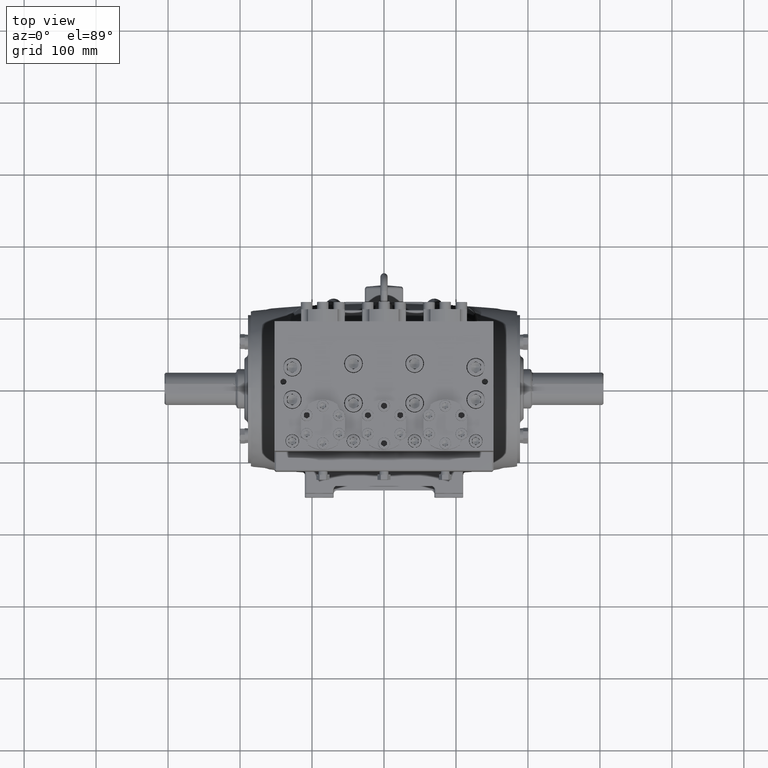
[diagram: clean part render]
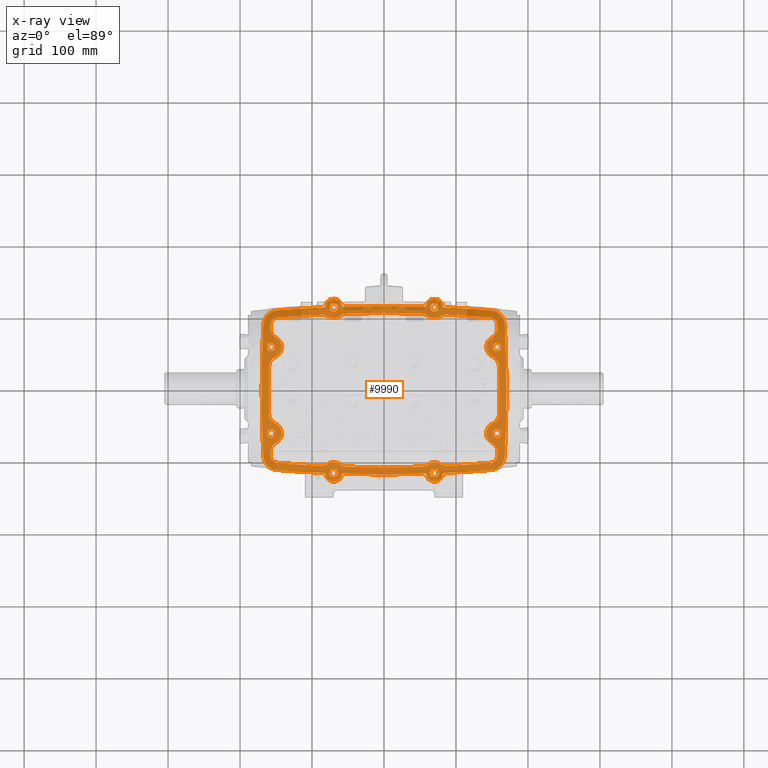
[diagram: x-ray — body ghosted, one internal face saturated and labeled with its STEP entity id]
A machine part, top view, then the same camera in x-ray: the body is ghosted and one INTERNAL B-rep face — a face not visible from any outside direction — is saturated and labeled: STEP entity #9990.
In plain terms, the highlighted planar face has unit normal (-0, 0, -1).
Its self-contained STEP definition (entity closure, byte-faithful):
#92 = CARTESIAN_POINT ( 'NONE',  ( 5.879475132747616684, -4.361980001285688857, -4.527559055118111075 ) ) ;
#541 = CARTESIAN_POINT ( 'NONE',  ( 0.000000000000000000, 66.25984251968503713, -4.527559055118111075 ) ) ;
#559 = AXIS2_PLACEMENT_3D ( 'NONE', #67489, #24088, #31088 ) ;
#775 = CARTESIAN_POINT ( 'NONE',  ( 64.17322834645669616, 0.000000000000000000, -4.527559055118111075 ) ) ;
#795 = EDGE_CURVE ( 'NONE', #50512, #13995, #78420, .T. ) ;
#833 = CARTESIAN_POINT ( 'NONE',  ( 64.17322834645669616, 0.000000000000000000, -4.527559055118111075 ) ) ;
#1280 = CARTESIAN_POINT ( 'NONE',  ( -2.755905511811023612, -4.527559055118110187, -4.527559055118111075 ) ) ;
#1353 = DIRECTION ( 'NONE',  ( 0.000000000000000000, 0.000000000000000000, 1.000000000000000000 ) ) ;
#1385 = CIRCLE ( 'NONE', #5335, 0.2263779527559057203 ) ;
#1456 = DIRECTION ( 'NONE',  ( -0.000000000000000000, -0.000000000000000000, -1.000000000000000000 ) ) ;
#1503 = CARTESIAN_POINT ( 'NONE',  ( 3.079201460133389912, -4.033362305533764847, -4.527559055118111075 ) ) ;
#1579 = ORIENTED_EDGE ( 'NONE', *, *, #54910, .F. ) ;
#1722 = FACE_BOUND ( 'NONE', #47123, .T. ) ;
#2141 = DIRECTION ( 'NONE',  ( -1.000000000000000000, 0.000000000000000000, 0.000000000000000000 ) ) ;
#2254 = DIRECTION ( 'NONE',  ( -0.000000000000000000, -0.000000000000000000, -1.000000000000000000 ) ) ;
#2532 = DIRECTION ( 'NONE',  ( -1.000000000000000000, 0.000000000000000000, 0.000000000000000000 ) ) ;
#2538 = AXIS2_PLACEMENT_3D ( 'NONE', #72323, #54112, #23141 ) ;
#2719 = CARTESIAN_POINT ( 'NONE',  ( -3.402497408455758876, -3.539165555949416841, -4.527559055118111075 ) ) ;
#2864 = AXIS2_PLACEMENT_3D ( 'NONE', #22477, #79487, #72887 ) ;
#2938 = FACE_OUTER_BOUND ( 'NONE', #37109, .T. ) ;
#3395 = CARTESIAN_POINT ( 'NONE',  ( 6.181102362204725864, 2.362204724409448620, -4.527559055118111075 ) ) ;
#3530 = AXIS2_PLACEMENT_3D ( 'NONE', #18777, #73148, #4553 ) ;
#3564 = CIRCLE ( 'NONE', #53689, 0.7874015748031503170 ) ;
#3934 = VERTEX_POINT ( 'NONE', #51728 ) ;
#4248 = CARTESIAN_POINT ( 'NONE',  ( -6.215528999314371639, 3.433332498902711194, -4.527559055118111075 ) ) ;
#4553 = DIRECTION ( 'NONE',  ( 1.000000000000000000, 0.000000000000000000, 0.000000000000000000 ) ) ;
#4805 = VERTEX_POINT ( 'NONE', #10926 ) ;
#5011 = CARTESIAN_POINT ( 'NONE',  ( -2.285324605308472812, -4.569440516842007582, -4.527559055118111075 ) ) ;
#5204 = CARTESIAN_POINT ( 'NONE',  ( 6.181102362204725864, 2.362204724409448620, -4.527559055118111075 ) ) ;
#5239 = EDGE_CURVE ( 'NONE', #60478, #41623, #57615, .T. ) ;
#5299 = DIRECTION ( 'NONE',  ( -0.000000000000000000, -0.000000000000000000, -1.000000000000000000 ) ) ;
#5307 = DIRECTION ( 'NONE',  ( -0.000000000000000000, -0.000000000000000000, -1.000000000000000000 ) ) ;
#5335 = AXIS2_PLACEMENT_3D ( 'NONE', #66618, #47606, #10433 ) ;
#5780 = CARTESIAN_POINT ( 'NONE',  ( 0.000000000000000000, 66.25984251968503713, -4.527559055118111075 ) ) ;
#5786 = ORIENTED_EDGE ( 'NONE', *, *, #33056, .F. ) ;
#5863 = VERTEX_POINT ( 'NONE', #23815 ) ;
#5965 = AXIS2_PLACEMENT_3D ( 'NONE', #34780, #78988, #59192 ) ;
#6004 = AXIS2_PLACEMENT_3D ( 'NONE', #47619, #72819, #66629 ) ;
#6053 = CIRCLE ( 'NONE', #25874, 0.5905511811023621549 ) ;
#6328 = CARTESIAN_POINT ( 'NONE',  ( -6.215528999314378744, -3.433332498902715191, -4.527559055118111075 ) ) ;
#6391 = CARTESIAN_POINT ( 'NONE',  ( -2.395166083321293993, -4.059993271260593950, -4.527559055118111075 ) ) ;
#6459 = CARTESIAN_POINT ( 'NONE',  ( 2.982283464566929165, 4.527559055118110187, -4.527559055118111075 ) ) ;
#6617 = DIRECTION ( 'NONE',  ( 0.000000000000000000, 0.000000000000000000, 1.000000000000000000 ) ) ;
#6688 = ORIENTED_EDGE ( 'NONE', *, *, #55095, .T. ) ;
#7080 = DIRECTION ( 'NONE',  ( 1.000000000000000000, 0.000000000000000000, 0.000000000000000000 ) ) ;
#7962 = AXIS2_PLACEMENT_3D ( 'NONE', #31479, #75674, #44268 ) ;
#8010 = DIRECTION ( 'NONE',  ( 0.000000000000000000, 0.000000000000000000, 1.000000000000000000 ) ) ;
#8129 = AXIS2_PLACEMENT_3D ( 'NONE', #5204, #36196, #24203 ) ;
#8155 = ORIENTED_EDGE ( 'NONE', *, *, #11276, .F. ) ;
#8303 = DIRECTION ( 'NONE',  ( 0.000000000000000000, 0.000000000000000000, 1.000000000000000000 ) ) ;
#8328 = VERTEX_POINT ( 'NONE', #40469 ) ;
#8382 = AXIS2_PLACEMENT_3D ( 'NONE', #47338, #15937, #66346 ) ;
#8494 = AXIS2_PLACEMENT_3D ( 'NONE', #47494, #72691, #35920 ) ;
#8633 = ORIENTED_EDGE ( 'NONE', *, *, #77851, .F. ) ;
#8757 = FACE_BOUND ( 'NONE', #11825, .T. ) ;
#8943 = DIRECTION ( 'NONE',  ( -1.000000000000000000, 0.000000000000000000, 0.000000000000000000 ) ) ;
#9137 = AXIS2_PLACEMENT_3D ( 'NONE', #54069, #65267, #66071 ) ;
#9146 = CIRCLE ( 'NONE', #48727, 0.2263779527559057203 ) ;
#9253 = DIRECTION ( 'NONE',  ( 1.000000000000000000, 0.000000000000000000, 0.000000000000000000 ) ) ;
#9389 = AXIS2_PLACEMENT_3D ( 'NONE', #12736, #63128, #29700 ) ;
#9586 = DIRECTION ( 'NONE',  ( -0.000000000000000000, -0.000000000000000000, -1.000000000000000000 ) ) ;
#9757 = CIRCLE ( 'NONE', #19011, 70.86614173228345237 ) ;
#9758 = EDGE_CURVE ( 'NONE', #29850, #73176, #43802, .T. ) ;
#9782 = CIRCLE ( 'NONE', #26946, 70.47244094488188182 ) ;
#9807 = CARTESIAN_POINT ( 'NONE',  ( -5.903390719813585541, 2.883383140291963187, -4.527559055118111075 ) ) ;
#9822 = VERTEX_POINT ( 'NONE', #79886 ) ;
#9922 = CARTESIAN_POINT ( 'NONE',  ( 2.395166083321290884, 4.059993271260593062, -4.527559055118111075 ) ) ;
#9990 = ADVANCED_FACE ( 'NONE', ( #2938, #8757, #45930, #71538, #39716, #65350, #77721, #1722, #28142, #59947 ), #53337, .F. ) ;
#10028 = CIRCLE ( 'NONE', #60143, 70.86614173228345237 ) ;
#10241 = DIRECTION ( 'NONE',  ( -0.000000000000000000, -0.000000000000000000, -1.000000000000000000 ) ) ;
#10289 = EDGE_CURVE ( 'NONE', #11414, #23087, #63637, .T. ) ;
#10433 = DIRECTION ( 'NONE',  ( -1.000000000000000000, 0.000000000000000000, 0.000000000000000000 ) ) ;
#10689 = CARTESIAN_POINT ( 'NONE',  ( 0.000000000000000000, 66.25984251968503713, -4.527559055118111075 ) ) ;
#10746 = EDGE_CURVE ( 'NONE', #30463, #23147, #47829, .T. ) ;
#10892 = CARTESIAN_POINT ( 'NONE',  ( 2.285324605308472812, -4.569440516842007582, -4.527559055118111075 ) ) ;
#10926 = CARTESIAN_POINT ( 'NONE',  ( 5.954724409448820310, 2.362204724409448620, -4.527559055118111075 ) ) ;
#11246 = CARTESIAN_POINT ( 'NONE',  ( 6.215528999314371639, 3.433332498902711194, -4.527559055118111075 ) ) ;
#11260 = CARTESIAN_POINT ( 'NONE',  ( 2.051618992759716598, -4.182728360702411052, -4.527559055118111075 ) ) ;
#11276 = EDGE_CURVE ( 'NONE', #32598, #20661, #54485, .T. ) ;
#11330 = EDGE_CURVE ( 'NONE', #65242, #46761, #75656, .T. ) ;
#11364 = VERTEX_POINT ( 'NONE', #65121 ) ;
#11389 = EDGE_CURVE ( 'NONE', #73176, #43291, #77017, .T. ) ;
#11414 = VERTEX_POINT ( 'NONE', #41123 ) ;
#11419 = CARTESIAN_POINT ( 'NONE',  ( 2.285324605308475476, 4.569440516842013800, -4.527559055118111075 ) ) ;
#11572 = EDGE_CURVE ( 'NONE', #52585, #33847, #51954, .T. ) ;
#11623 = EDGE_CURVE ( 'NONE', #80340, #11414, #80976, .T. ) ;
#11813 = CIRCLE ( 'NONE', #38144, 0.5905511811023615998 ) ;
#11825 = EDGE_LOOP ( 'NONE', ( #35013, #11831 ) ) ;
#11831 = ORIENTED_EDGE ( 'NONE', *, *, #79162, .F. ) ;
#11846 = VERTEX_POINT ( 'NONE', #26006 ) ;
#12086 = CIRCLE ( 'NONE', #8129, 0.5905511811023583801 ) ;
#12185 = CARTESIAN_POINT ( 'NONE',  ( -5.938974744346532830, -1.823572276285768901, -4.527559055118111075 ) ) ;
#12235 = VERTEX_POINT ( 'NONE', #21340 ) ;
#12329 = CARTESIAN_POINT ( 'NONE',  ( -5.954724409448817646, -2.362204724409448620, -4.527559055118111075 ) ) ;
#12490 = EDGE_CURVE ( 'NONE', #55291, #13012, #53366, .T. ) ;
#12583 = CARTESIAN_POINT ( 'NONE',  ( -5.625679077422444330, 3.404561556174479975, -4.527559055118111075 ) ) ;
#12603 = DIRECTION ( 'NONE',  ( 0.000000000000000000, 0.000000000000000000, 1.000000000000000000 ) ) ;
#12658 = ORIENTED_EDGE ( 'NONE', *, *, #29865, .T. ) ;
#12721 = DIRECTION ( 'NONE',  ( -1.000000000000000000, 0.000000000000000000, 0.000000000000000000 ) ) ;
#12728 = DIRECTION ( 'NONE',  ( 1.000000000000000000, 0.000000000000000000, 0.000000000000000000 ) ) ;
#12736 = CARTESIAN_POINT ( 'NONE',  ( 2.755905511811023612, -4.527559055118110187, -4.527559055118111075 ) ) ;
#12737 = DIRECTION ( 'NONE',  ( -1.000000000000000000, 0.000000000000000000, 0.000000000000000000 ) ) ;
#12740 = EDGE_CURVE ( 'NONE', #3934, #47481, #13802, .T. ) ;
#13012 = VERTEX_POINT ( 'NONE', #75882 ) ;
#13359 = AXIS2_PLACEMENT_3D ( 'NONE', #80117, #23912, #49109 ) ;
#13635 = DIRECTION ( 'NONE',  ( 1.000000000000000000, 0.000000000000000000, 0.000000000000000000 ) ) ;
#13671 = CIRCLE ( 'NONE', #50646, 0.2263779527559057203 ) ;
#13802 = CIRCLE ( 'NONE', #59980, 0.2263779527559057203 ) ;
#13854 = EDGE_CURVE ( 'NONE', #64654, #53334, #41618, .T. ) ;
#13995 = VERTEX_POINT ( 'NONE', #11260 ) ;
#14021 = AXIS2_PLACEMENT_3D ( 'NONE', #55256, #61864, #79634 ) ;
#14051 = ORIENTED_EDGE ( 'NONE', *, *, #12490, .T. ) ;
#14082 = ORIENTED_EDGE ( 'NONE', *, *, #76296, .F. ) ;
#14216 = CARTESIAN_POINT ( 'NONE',  ( -3.402497408455763317, 3.539165555949416841, -4.527559055118111075 ) ) ;
#14414 = DIRECTION ( 'NONE',  ( -1.000000000000000000, 0.000000000000000000, 0.000000000000000000 ) ) ;
#14448 = EDGE_CURVE ( 'NONE', #49761, #68693, #76660, .T. ) ;
#14882 = VERTEX_POINT ( 'NONE', #40261 ) ;
#15291 = CARTESIAN_POINT ( 'NONE',  ( 6.215528999314378744, -3.433332498902715191, -4.527559055118111075 ) ) ;
#15748 = CIRCLE ( 'NONE', #2538, 70.86614173228346658 ) ;
#15763 = CARTESIAN_POINT ( 'NONE',  ( 6.181102362204723200, -2.362204724409448620, -4.527559055118111075 ) ) ;
#15937 = DIRECTION ( 'NONE',  ( -0.000000000000000000, 0.000000000000000000, 1.000000000000000000 ) ) ;
#16126 = DIRECTION ( 'NONE',  ( 0.000000000000000000, 0.000000000000000000, 1.000000000000000000 ) ) ;
#16197 = CARTESIAN_POINT ( 'NONE',  ( -2.755905511811023612, 4.527559055118110187, -4.527559055118111075 ) ) ;
#16269 = CIRCLE ( 'NONE', #63788, 0.5905511811023583801 ) ;
#16540 = ORIENTED_EDGE ( 'NONE', *, *, #35911, .T. ) ;
#16618 = DIRECTION ( 'NONE',  ( 1.000000000000000000, 0.000000000000000000, 0.000000000000000000 ) ) ;
#17149 = AXIS2_PLACEMENT_3D ( 'NONE', #10689, #21542, #2141 ) ;
#17218 = ORIENTED_EDGE ( 'NONE', *, *, #12740, .T. ) ;
#17695 = CARTESIAN_POINT ( 'NONE',  ( 2.755905511811023612, 4.527559055118110187, -4.527559055118111075 ) ) ;
#17758 = CARTESIAN_POINT ( 'NONE',  ( -5.846811382010109526, -3.969636542835851767, -4.527559055118111075 ) ) ;
#18398 = DIRECTION ( 'NONE',  ( 1.000000000000000000, 0.000000000000000000, 0.000000000000000000 ) ) ;
#18543 = AXIS2_PLACEMENT_3D ( 'NONE', #32730, #26542, #24905 ) ;
#18777 = CARTESIAN_POINT ( 'NONE',  ( -5.625679077422441665, -3.404561556174479975, -4.527559055118111075 ) ) ;
#19011 = AXIS2_PLACEMENT_3D ( 'NONE', #52747, #22163, #65565 ) ;
#19425 = DIRECTION ( 'NONE',  ( -1.000000000000000000, 0.000000000000000000, 0.000000000000000000 ) ) ;
#19593 = EDGE_CURVE ( 'NONE', #49862, #13995, #24230, .T. ) ;
#19746 = EDGE_CURVE ( 'NONE', #23147, #30463, #13671, .T. ) ;
#19801 = VERTEX_POINT ( 'NONE', #11246 ) ;
#20035 = ORIENTED_EDGE ( 'NONE', *, *, #24149, .F. ) ;
#20107 = CARTESIAN_POINT ( 'NONE',  ( -6.407480314960631418, 2.362204724409448620, -4.527559055118111075 ) ) ;
#20143 = EDGE_CURVE ( 'NONE', #11846, #32041, #63858, .T. ) ;
#20327 = AXIS2_PLACEMENT_3D ( 'NONE', #42669, #80696, #37279 ) ;
#20351 = ORIENTED_EDGE ( 'NONE', *, *, #32979, .F. ) ;
#20363 = CARTESIAN_POINT ( 'NONE',  ( -2.755905511811023612, 4.527559055118110187, -4.527559055118111075 ) ) ;
#20390 = CARTESIAN_POINT ( 'NONE',  ( -3.431250907682156903, -4.129016328419565340, -4.527559055118111075 ) ) ;
#20436 = DIRECTION ( 'NONE',  ( 0.000000000000000000, 0.000000000000000000, 1.000000000000000000 ) ) ;
#20612 = CARTESIAN_POINT ( 'NONE',  ( 2.755905511811023612, 4.527559055118110187, -4.527559055118111075 ) ) ;
#20650 = VERTEX_POINT ( 'NONE', #47639 ) ;
#20661 = VERTEX_POINT ( 'NONE', #29442 ) ;
#21103 = VERTEX_POINT ( 'NONE', #25992 ) ;
#21138 = DIRECTION ( 'NONE',  ( -0.000000000000000000, 0.000000000000000000, -1.000000000000000000 ) ) ;
#21175 = DIRECTION ( 'NONE',  ( 0.000000000000000000, 0.000000000000000000, 1.000000000000000000 ) ) ;
#21327 = CARTESIAN_POINT ( 'NONE',  ( 5.814147631272645000, 3.577293084386014232, -4.527559055118111075 ) ) ;
#21340 = CARTESIAN_POINT ( 'NONE',  ( -6.287298468513228933, -1.295798474597251504, -4.527559055118111075 ) ) ;
#21469 = ORIENTED_EDGE ( 'NONE', *, *, #19593, .F. ) ;
#21542 = DIRECTION ( 'NONE',  ( 0.000000000000000000, 0.000000000000000000, 1.000000000000000000 ) ) ;
#21598 = AXIS2_PLACEMENT_3D ( 'NONE', #25105, #56095, #12728 ) ;
#21661 = ORIENTED_EDGE ( 'NONE', *, *, #11572, .F. ) ;
#21689 = AXIS2_PLACEMENT_3D ( 'NONE', #49574, #75174, #66968 ) ;
#22074 = CARTESIAN_POINT ( 'NONE',  ( 0.000000000000000000, -66.25984251968503713, -4.527559055118111075 ) ) ;
#22163 = DIRECTION ( 'NONE',  ( -0.000000000000000000, -0.000000000000000000, -1.000000000000000000 ) ) ;
#22477 = CARTESIAN_POINT ( 'NONE',  ( 0.000000000000000000, -66.25984251968503713, -4.527559055118111075 ) ) ;
#22942 = AXIS2_PLACEMENT_3D ( 'NONE', #64523, #65746, #27339 ) ;
#23087 = VERTEX_POINT ( 'NONE', #42575 ) ;
#23141 = DIRECTION ( 'NONE',  ( 1.000000000000000000, 0.000000000000000000, 0.000000000000000000 ) ) ;
#23147 = VERTEX_POINT ( 'NONE', #66574 ) ;
#23164 = EDGE_LOOP ( 'NONE', ( #36056, #14082, #31808, #68034, #6688, #71295, #56888, #59613, #80205, #80017, #59751, #76812, #33745, #80903, #70181, #28665, #73341, #48610, #71109, #29770, #42036, #21469, #1579, #78613, #8155, #60227, #35233, #28467, #23782, #8633, #20351, #38357, #73833, #26882, #77641, #21661, #67406, #69659, #41573, #79323 ) ) ;
#23165 = DIRECTION ( 'NONE',  ( 1.000000000000000000, 0.000000000000000000, 0.000000000000000000 ) ) ;
#23258 = AXIS2_PLACEMENT_3D ( 'NONE', #48629, #60186, #80823 ) ;
#23325 = EDGE_CURVE ( 'NONE', #74340, #24886, #65074, .T. ) ;
#23782 = ORIENTED_EDGE ( 'NONE', *, *, #67595, .F. ) ;
#23815 = CARTESIAN_POINT ( 'NONE',  ( -2.285324605308475476, 4.569440516842013800, -4.527559055118111075 ) ) ;
#23856 = EDGE_CURVE ( 'NONE', #81697, #20650, #65132, .T. ) ;
#23897 = EDGE_CURVE ( 'NONE', #31842, #80562, #75680, .T. ) ;
#23912 = DIRECTION ( 'NONE',  ( -0.000000000000000000, -0.000000000000000000, -1.000000000000000000 ) ) ;
#24012 = CARTESIAN_POINT ( 'NONE',  ( 3.228318182014460191, 4.532727752454121628, -4.527559055118111075 ) ) ;
#24088 = DIRECTION ( 'NONE',  ( 0.000000000000000000, 0.000000000000000000, 1.000000000000000000 ) ) ;
#24149 = EDGE_CURVE ( 'NONE', #46496, #14882, #9757, .T. ) ;
#24202 = AXIS2_PLACEMENT_3D ( 'NONE', #37499, #5299, #69316 ) ;
#24203 = DIRECTION ( 'NONE',  ( -1.000000000000000000, 0.000000000000000000, 0.000000000000000000 ) ) ;
#24229 = AXIS2_PLACEMENT_3D ( 'NONE', #12583, #62982, #37768 ) ;
#24230 = CIRCLE ( 'NONE', #45340, 70.47244094488188182 ) ;
#24271 = AXIS2_PLACEMENT_3D ( 'NONE', #66987, #36383, #67381 ) ;
#24273 = ORIENTED_EDGE ( 'NONE', *, *, #19746, .T. ) ;
#24303 = DIRECTION ( 'NONE',  ( -0.000000000000000000, -0.000000000000000000, -1.000000000000000000 ) ) ;
#24886 = VERTEX_POINT ( 'NONE', #50432 ) ;
#24905 = DIRECTION ( 'NONE',  ( 1.000000000000000000, 0.000000000000000000, 0.000000000000000000 ) ) ;
#25105 = CARTESIAN_POINT ( 'NONE',  ( -6.181102362204723200, -2.362204724409448620, -4.527559055118111075 ) ) ;
#25563 = EDGE_CURVE ( 'NONE', #4805, #55843, #81117, .T. ) ;
#25749 = DIRECTION ( 'NONE',  ( 1.000000000000000000, 0.000000000000000000, 0.000000000000000000 ) ) ;
#25874 = AXIS2_PLACEMENT_3D ( 'NONE', #63077, #74657, #32478 ) ;
#25973 = EDGE_CURVE ( 'NONE', #74751, #46496, #41581, .T. ) ;
#25992 = CARTESIAN_POINT ( 'NONE',  ( -5.954724409448820310, 2.362204724409448620, -4.527559055118111075 ) ) ;
#26006 = CARTESIAN_POINT ( 'NONE',  ( 6.407480314960629642, -2.362204724409448620, -4.527559055118111075 ) ) ;
#26007 = CIRCLE ( 'NONE', #31372, 0.7874015748031503170 ) ;
#26016 = CIRCLE ( 'NONE', #44463, 0.2263779527559057203 ) ;
#26531 = VERTEX_POINT ( 'NONE', #39158 ) ;
#26542 = DIRECTION ( 'NONE',  ( 0.000000000000000000, 0.000000000000000000, 1.000000000000000000 ) ) ;
#26670 = DIRECTION ( 'NONE',  ( 1.000000000000000000, 0.000000000000000000, 0.000000000000000000 ) ) ;
#26875 = CIRCLE ( 'NONE', #61207, 0.5905511811023615998 ) ;
#26882 = ORIENTED_EDGE ( 'NONE', *, *, #79104, .F. ) ;
#26946 = AXIS2_PLACEMENT_3D ( 'NONE', #59801, #10241, #28804 ) ;
#27021 = AXIS2_PLACEMENT_3D ( 'NONE', #40872, #71475, #65287 ) ;
#27023 = CARTESIAN_POINT ( 'NONE',  ( -5.814147631272645000, 3.577293084386014232, -4.527559055118111075 ) ) ;
#27339 = DIRECTION ( 'NONE',  ( 1.000000000000000000, 0.000000000000000000, 0.000000000000000000 ) ) ;
#27345 = EDGE_CURVE ( 'NONE', #34763, #49761, #54924, .T. ) ;
#27457 = DIRECTION ( 'NONE',  ( -0.000000000000000000, -0.000000000000000000, -1.000000000000000000 ) ) ;
#27464 = DIRECTION ( 'NONE',  ( -1.000000000000000000, 0.000000000000000000, 0.000000000000000000 ) ) ;
#27545 = CARTESIAN_POINT ( 'NONE',  ( 5.625679077422441665, -3.404561556174479975, -4.527559055118111075 ) ) ;
#27822 = CARTESIAN_POINT ( 'NONE',  ( -6.207335136765494532, 3.597390236545523035, -4.527559055118111075 ) ) ;
#27909 = VERTEX_POINT ( 'NONE', #51164 ) ;
#28123 = VERTEX_POINT ( 'NONE', #9807 ) ;
#28142 = FACE_BOUND ( 'NONE', #51366, .T. ) ;
#28243 = CARTESIAN_POINT ( 'NONE',  ( 2.034426654831557268, 3.592427487403074604, -4.527559055118111075 ) ) ;
#28463 = ORIENTED_EDGE ( 'NONE', *, *, #66653, .T. ) ;
#28467 = ORIENTED_EDGE ( 'NONE', *, *, #5239, .F. ) ;
#28584 = ORIENTED_EDGE ( 'NONE', *, *, #25973, .F. ) ;
#28601 = DIRECTION ( 'NONE',  ( -0.000000000000000000, -0.000000000000000000, -1.000000000000000000 ) ) ;
#28665 = ORIENTED_EDGE ( 'NONE', *, *, #71350, .T. ) ;
#28737 = DIRECTION ( 'NONE',  ( -1.000000000000000000, 0.000000000000000000, 0.000000000000000000 ) ) ;
#28804 = DIRECTION ( 'NONE',  ( -1.000000000000000000, 0.000000000000000000, 0.000000000000000000 ) ) ;
#28968 = CARTESIAN_POINT ( 'NONE',  ( -2.755905511811023612, 4.527559055118110187, -4.527559055118111075 ) ) ;
#29164 = CARTESIAN_POINT ( 'NONE',  ( -2.755905511811023612, -4.527559055118110187, -4.527559055118111075 ) ) ;
#29442 = CARTESIAN_POINT ( 'NONE',  ( -3.079201460133389912, -4.033362305533764847, -4.527559055118111075 ) ) ;
#29700 = DIRECTION ( 'NONE',  ( -1.000000000000000000, 0.000000000000000000, 0.000000000000000000 ) ) ;
#29770 = ORIENTED_EDGE ( 'NONE', *, *, #53009, .T. ) ;
#29850 = VERTEX_POINT ( 'NONE', #72004 ) ;
#29865 = EDGE_CURVE ( 'NONE', #55843, #4805, #26016, .T. ) ;
#30112 = CARTESIAN_POINT ( 'NONE',  ( 5.625679077422444330, 3.404561556174479975, -4.527559055118111075 ) ) ;
#30306 = CIRCLE ( 'NONE', #43504, 70.47244094488186761 ) ;
#30348 = ORIENTED_EDGE ( 'NONE', *, *, #10746, .T. ) ;
#30461 = CIRCLE ( 'NONE', #43651, 70.47244094488188182 ) ;
#30463 = VERTEX_POINT ( 'NONE', #6459 ) ;
#30618 = EDGE_CURVE ( 'NONE', #45575, #21103, #78847, .T. ) ;
#30809 = EDGE_CURVE ( 'NONE', #20661, #49280, #80169, .T. ) ;
#31061 = DIRECTION ( 'NONE',  ( -0.000000000000000000, -0.000000000000000000, -1.000000000000000000 ) ) ;
#31088 = DIRECTION ( 'NONE',  ( 1.000000000000000000, 0.000000000000000000, 0.000000000000000000 ) ) ;
#31372 = AXIS2_PLACEMENT_3D ( 'NONE', #21327, #71727, #8943 ) ;
#31479 = CARTESIAN_POINT ( 'NONE',  ( 0.000000000000000000, 66.25984251968503713, -4.527559055118111075 ) ) ;
#31526 = CARTESIAN_POINT ( 'NONE',  ( 6.287298468513228933, -1.295798474597251504, -4.527559055118111075 ) ) ;
#31782 = VERTEX_POINT ( 'NONE', #73351 ) ;
#31795 = DIRECTION ( 'NONE',  ( 0.000000000000000000, 0.000000000000000000, 1.000000000000000000 ) ) ;
#31808 = ORIENTED_EDGE ( 'NONE', *, *, #9758, .T. ) ;
#31842 = VERTEX_POINT ( 'NONE', #37773 ) ;
#31900 = EDGE_CURVE ( 'NONE', #31782, #70714, #69711, .T. ) ;
#32041 = VERTEX_POINT ( 'NONE', #48478 ) ;
#32210 = DIRECTION ( 'NONE',  ( 0.000000000000000000, 0.000000000000000000, 1.000000000000000000 ) ) ;
#32478 = DIRECTION ( 'NONE',  ( -1.000000000000000000, 0.000000000000000000, 0.000000000000000000 ) ) ;
#32598 = VERTEX_POINT ( 'NONE', #20390 ) ;
#32674 = DIRECTION ( 'NONE',  ( -0.000000000000000000, -0.000000000000000000, -1.000000000000000000 ) ) ;
#32730 = CARTESIAN_POINT ( 'NONE',  ( -6.181102362204723200, -2.362204724409448620, -4.527559055118111075 ) ) ;
#32912 = ORIENTED_EDGE ( 'NONE', *, *, #63186, .T. ) ;
#32979 = EDGE_CURVE ( 'NONE', #12235, #77630, #11813, .T. ) ;
#33054 = EDGE_CURVE ( 'NONE', #60122, #5863, #15748, .T. ) ;
#33056 = EDGE_CURVE ( 'NONE', #74231, #27909, #9146, .T. ) ;
#33279 = DIRECTION ( 'NONE',  ( 1.000000000000000000, 0.000000000000000000, 0.000000000000000000 ) ) ;
#33312 = AXIS2_PLACEMENT_3D ( 'NONE', #17695, #68105, #12721 ) ;
#33403 = DIRECTION ( 'NONE',  ( -0.000000000000000000, -0.000000000000000000, -1.000000000000000000 ) ) ;
#33426 = AXIS2_PLACEMENT_3D ( 'NONE', #33933, #76897, #2532 ) ;
#33745 = ORIENTED_EDGE ( 'NONE', *, *, #13854, .T. ) ;
#33847 = VERTEX_POINT ( 'NONE', #4248 ) ;
#33917 = EDGE_CURVE ( 'NONE', #57722, #32598, #34308, .T. ) ;
#33933 = CARTESIAN_POINT ( 'NONE',  ( -5.814147631272645000, -3.577293084386014232, -4.527559055118111075 ) ) ;
#33943 = DIRECTION ( 'NONE',  ( -1.000000000000000000, 0.000000000000000000, 0.000000000000000000 ) ) ;
#34030 = DIRECTION ( 'NONE',  ( 0.000000000000000000, 0.000000000000000000, 1.000000000000000000 ) ) ;
#34085 = VERTEX_POINT ( 'NONE', #54964 ) ;
#34095 = AXIS2_PLACEMENT_3D ( 'NONE', #14216, #8010, #44375 ) ;
#34307 = EDGE_CURVE ( 'NONE', #60122, #76782, #75307, .T. ) ;
#34308 = CIRCLE ( 'NONE', #7962, 70.47244094488188182 ) ;
#34328 = VERTEX_POINT ( 'NONE', #66449 ) ;
#34431 = DIRECTION ( 'NONE',  ( 0.000000000000000000, 0.000000000000000000, 1.000000000000000000 ) ) ;
#34763 = VERTEX_POINT ( 'NONE', #92 ) ;
#34780 = CARTESIAN_POINT ( 'NONE',  ( -64.17322834645669616, 0.000000000000000000, -4.527559055118111075 ) ) ;
#35013 = ORIENTED_EDGE ( 'NONE', *, *, #75016, .F. ) ;
#35233 = ORIENTED_EDGE ( 'NONE', *, *, #79388, .F. ) ;
#35284 = CARTESIAN_POINT ( 'NONE',  ( 2.395166083321293993, -4.059993271260593950, -4.527559055118111075 ) ) ;
#35537 = CARTESIAN_POINT ( 'NONE',  ( -2.755905511811023612, 4.527559055118110187, -4.527559055118111075 ) ) ;
#35761 = DIRECTION ( 'NONE',  ( -1.000000000000000000, 0.000000000000000000, 0.000000000000000000 ) ) ;
#35831 = AXIS2_PLACEMENT_3D ( 'NONE', #49183, #61586, #23165 ) ;
#35911 = EDGE_CURVE ( 'NONE', #5863, #55291, #37133, .T. ) ;
#35920 = DIRECTION ( 'NONE',  ( -1.000000000000000000, 0.000000000000000000, 0.000000000000000000 ) ) ;
#36051 = DIRECTION ( 'NONE',  ( 0.000000000000000000, 0.000000000000000000, 1.000000000000000000 ) ) ;
#36056 = ORIENTED_EDGE ( 'NONE', *, *, #11330, .F. ) ;
#36082 = CARTESIAN_POINT ( 'NONE',  ( -6.181102362204725864, 2.362204724409448620, -4.527559055118111075 ) ) ;
#36196 = DIRECTION ( 'NONE',  ( -0.000000000000000000, 0.000000000000000000, 1.000000000000000000 ) ) ;
#36295 = CARTESIAN_POINT ( 'NONE',  ( -64.17322834645669616, 0.000000000000000000, -4.527559055118111075 ) ) ;
#36383 = DIRECTION ( 'NONE',  ( 0.000000000000000000, 0.000000000000000000, 1.000000000000000000 ) ) ;
#36605 = CIRCLE ( 'NONE', #74873, 0.5905511811023615998 ) ;
#36631 = AXIS2_PLACEMENT_3D ( 'NONE', #58917, #65516, #33279 ) ;
#36724 = CIRCLE ( 'NONE', #63083, 0.3937007874015751585 ) ;
#36768 = ORIENTED_EDGE ( 'NONE', *, *, #54670, .T. ) ;
#36806 = VERTEX_POINT ( 'NONE', #39868 ) ;
#36921 = ORIENTED_EDGE ( 'NONE', *, *, #27345, .F. ) ;
#37109 = EDGE_LOOP ( 'NONE', ( #53303, #50466, #16540, #14051, #51933, #67449, #36768, #63122, #63324, #32912, #59932, #49201, #36921, #60289, #20035, #28584, #60353, #64184 ) ) ;
#37133 = CIRCLE ( 'NONE', #47525, 0.4724409448818896462 ) ;
#37175 = VERTEX_POINT ( 'NONE', #15291 ) ;
#37237 = AXIS2_PLACEMENT_3D ( 'NONE', #48815, #9586, #47993 ) ;
#37279 = DIRECTION ( 'NONE',  ( 1.000000000000000000, 0.000000000000000000, 0.000000000000000000 ) ) ;
#37469 = CIRCLE ( 'NONE', #58594, 0.2263779527559057203 ) ;
#37494 = EDGE_CURVE ( 'NONE', #20650, #45826, #9782, .T. ) ;
#37499 = CARTESIAN_POINT ( 'NONE',  ( 5.814147631272622796, -3.577293084386014232, -4.527559055118111075 ) ) ;
#37768 = DIRECTION ( 'NONE',  ( -1.000000000000000000, 0.000000000000000000, 0.000000000000000000 ) ) ;
#37773 = CARTESIAN_POINT ( 'NONE',  ( -6.407480314960629642, -2.362204724409448620, -4.527559055118111075 ) ) ;
#37774 = DIRECTION ( 'NONE',  ( -0.000000000000000000, -0.000000000000000000, -1.000000000000000000 ) ) ;
#38144 = AXIS2_PLACEMENT_3D ( 'NONE', #64907, #8303, #58710 ) ;
#38357 = ORIENTED_EDGE ( 'NONE', *, *, #62831, .F. ) ;
#39158 = CARTESIAN_POINT ( 'NONE',  ( 6.207335136765494532, 3.597390236545523035, -4.527559055118111075 ) ) ;
#39251 = EDGE_LOOP ( 'NONE', ( #42121, #69453 ) ) ;
#39492 = AXIS2_PLACEMENT_3D ( 'NONE', #22074, #53463, #43796 ) ;
#39644 = CIRCLE ( 'NONE', #44904, 0.3937007874015751585 ) ;
#39661 = AXIS2_PLACEMENT_3D ( 'NONE', #20612, #33403, #14414 ) ;
#39716 = FACE_BOUND ( 'NONE', #48262, .T. ) ;
#39868 = CARTESIAN_POINT ( 'NONE',  ( 5.903390719813585541, 2.883383140291963187, -4.527559055118111075 ) ) ;
#39981 = AXIS2_PLACEMENT_3D ( 'NONE', #54053, #54888, #42079 ) ;
#40125 = CARTESIAN_POINT ( 'NONE',  ( 6.692913385826751771, 0.000000000000000000, -4.527559055118111075 ) ) ;
#40261 = CARTESIAN_POINT ( 'NONE',  ( 6.600522642258369821, -3.617487388704947016, -4.527559055118111075 ) ) ;
#40376 = CIRCLE ( 'NONE', #14021, 0.5905511811023621549 ) ;
#40469 = CARTESIAN_POINT ( 'NONE',  ( -6.600522642258368933, 3.617487388704958562, -4.527559055118111075 ) ) ;
#40872 = CARTESIAN_POINT ( 'NONE',  ( 2.034426654831562598, -3.592427487403074604, -4.527559055118111075 ) ) ;
#40943 = DIRECTION ( 'NONE',  ( -0.000000000000000000, 0.000000000000000000, 1.000000000000000000 ) ) ;
#41123 = CARTESIAN_POINT ( 'NONE',  ( -5.879475132747616684, -4.361980001285688857, -4.527559055118111075 ) ) ;
#41157 = ORIENTED_EDGE ( 'NONE', *, *, #79203, .F. ) ;
#41306 = DIRECTION ( 'NONE',  ( 1.000000000000000000, 0.000000000000000000, 0.000000000000000000 ) ) ;
#41377 = CIRCLE ( 'NONE', #24229, 0.5905511811023615998 ) ;
#41531 = CARTESIAN_POINT ( 'NONE',  ( -2.034426654831557268, 3.592427487403074604, -4.527559055118111075 ) ) ;
#41573 = ORIENTED_EDGE ( 'NONE', *, *, #31900, .F. ) ;
#41581 = CIRCLE ( 'NONE', #5965, 70.86614173228345237 ) ;
#41618 = CIRCLE ( 'NONE', #6004, 0.5905511811023615998 ) ;
#41623 = VERTEX_POINT ( 'NONE', #78149 ) ;
#41650 = CARTESIAN_POINT ( 'NONE',  ( 3.228318182014415783, -4.532727752454131398, -4.527559055118111075 ) ) ;
#42036 = ORIENTED_EDGE ( 'NONE', *, *, #795, .T. ) ;
#42079 = DIRECTION ( 'NONE',  ( -1.000000000000000000, 0.000000000000000000, 0.000000000000000000 ) ) ;
#42121 = ORIENTED_EDGE ( 'NONE', *, *, #47375, .F. ) ;
#42154 = CARTESIAN_POINT ( 'NONE',  ( 5.903390719813582876, -2.883383140291962743, -4.527559055118111075 ) ) ;
#42427 = EDGE_CURVE ( 'NONE', #13012, #8328, #3564, .T. ) ;
#42575 = CARTESIAN_POINT ( 'NONE',  ( -3.228318182014415783, -4.532727752454131398, -4.527559055118111075 ) ) ;
#42669 = CARTESIAN_POINT ( 'NONE',  ( -6.181102362204725864, 2.362204724409448620, -4.527559055118111075 ) ) ;
#43159 = EDGE_CURVE ( 'NONE', #11364, #47902, #36605, .T. ) ;
#43206 = AXIS2_PLACEMENT_3D ( 'NONE', #80664, #31061, #49261 ) ;
#43291 = VERTEX_POINT ( 'NONE', #58850 ) ;
#43504 = AXIS2_PLACEMENT_3D ( 'NONE', #69324, #49926, #12737 ) ;
#43588 = CIRCLE ( 'NONE', #18543, 0.2263779527559057203 ) ;
#43651 = AXIS2_PLACEMENT_3D ( 'NONE', #59640, #34431, #53435 ) ;
#43665 = CIRCLE ( 'NONE', #80617, 0.2263779527559057203 ) ;
#43796 = DIRECTION ( 'NONE',  ( -1.000000000000000000, 0.000000000000000000, 0.000000000000000000 ) ) ;
#43802 = CIRCLE ( 'NONE', #64943, 0.5905511811023624880 ) ;
#43910 = DIRECTION ( 'NONE',  ( -0.000000000000000000, -0.000000000000000000, -1.000000000000000000 ) ) ;
#44046 = EDGE_LOOP ( 'NONE', ( #24273, #30348 ) ) ;
#44185 = EDGE_CURVE ( 'NONE', #46761, #31782, #64440, .T. ) ;
#44268 = DIRECTION ( 'NONE',  ( 1.000000000000000000, 0.000000000000000000, 0.000000000000000000 ) ) ;
#44375 = DIRECTION ( 'NONE',  ( 1.000000000000000000, 0.000000000000000000, 0.000000000000000000 ) ) ;
#44463 = AXIS2_PLACEMENT_3D ( 'NONE', #3395, #28601, #53801 ) ;
#44524 = AXIS2_PLACEMENT_3D ( 'NONE', #1280, #32674, #7080 ) ;
#44675 = CARTESIAN_POINT ( 'NONE',  ( -2.982283464566929165, 4.527559055118110187, -4.527559055118111075 ) ) ;
#44904 = AXIS2_PLACEMENT_3D ( 'NONE', #58059, #1456, #26670 ) ;
#45171 = AXIS2_PLACEMENT_3D ( 'NONE', #78531, #21138, #33943 ) ;
#45340 = AXIS2_PLACEMENT_3D ( 'NONE', #541, #1353, #25749 ) ;
#45575 = VERTEX_POINT ( 'NONE', #20107 ) ;
#45826 = VERTEX_POINT ( 'NONE', #54347 ) ;
#45930 = FACE_BOUND ( 'NONE', #39251, .T. ) ;
#45948 = CARTESIAN_POINT ( 'NONE',  ( 2.982283464566929165, -4.527559055118110187, -4.527559055118111075 ) ) ;
#46111 = DIRECTION ( 'NONE',  ( 1.000000000000000000, 0.000000000000000000, 0.000000000000000000 ) ) ;
#46320 = CARTESIAN_POINT ( 'NONE',  ( 6.407480314960631418, 2.362204724409448620, -4.527559055118111075 ) ) ;
#46496 = VERTEX_POINT ( 'NONE', #40125 ) ;
#46511 = EDGE_CURVE ( 'NONE', #70788, #68693, #68614, .T. ) ;
#46526 = DIRECTION ( 'NONE',  ( 0.000000000000000000, 0.000000000000000000, 1.000000000000000000 ) ) ;
#46761 = VERTEX_POINT ( 'NONE', #73791 ) ;
#47123 = EDGE_LOOP ( 'NONE', ( #28463, #73079 ) ) ;
#47129 = CARTESIAN_POINT ( 'NONE',  ( 5.938974744346534607, 1.823572276285768456, -4.527559055118111075 ) ) ;
#47176 = DIRECTION ( 'NONE',  ( 1.000000000000000000, 0.000000000000000000, 0.000000000000000000 ) ) ;
#47338 = CARTESIAN_POINT ( 'NONE',  ( 2.755905511811023612, 4.527559055118110187, -4.527559055118111075 ) ) ;
#47375 = EDGE_CURVE ( 'NONE', #80562, #31842, #43588, .T. ) ;
#47481 = VERTEX_POINT ( 'NONE', #45948 ) ;
#47494 = CARTESIAN_POINT ( 'NONE',  ( 6.181102362204723200, -2.362204724409448620, -4.527559055118111075 ) ) ;
#47515 = CARTESIAN_POINT ( 'NONE',  ( 6.181102362204723200, -2.362204724409448620, -4.527559055118111075 ) ) ;
#47525 = AXIS2_PLACEMENT_3D ( 'NONE', #20363, #21175, #63745 ) ;
#47606 = DIRECTION ( 'NONE',  ( -0.000000000000000000, -0.000000000000000000, -1.000000000000000000 ) ) ;
#47619 = CARTESIAN_POINT ( 'NONE',  ( 5.696847126488339796, -1.284939828162086073, -4.527559055118111075 ) ) ;
#47639 = CARTESIAN_POINT ( 'NONE',  ( 5.846811382010109526, -3.969636542835851767, -4.527559055118111075 ) ) ;
#47829 = CIRCLE ( 'NONE', #33312, 0.2263779527559057203 ) ;
#47902 = VERTEX_POINT ( 'NONE', #80058 ) ;
#47993 = DIRECTION ( 'NONE',  ( 1.000000000000000000, 0.000000000000000000, 0.000000000000000000 ) ) ;
#48022 = CARTESIAN_POINT ( 'NONE',  ( -5.846811382010106861, 3.969636542835870419, -4.527559055118111075 ) ) ;
#48262 = EDGE_LOOP ( 'NONE', ( #50717, #5786 ) ) ;
#48402 = DIRECTION ( 'NONE',  ( -0.000000000000000000, -0.000000000000000000, -1.000000000000000000 ) ) ;
#48478 = CARTESIAN_POINT ( 'NONE',  ( 5.954724409448817646, -2.362204724409448620, -4.527559055118111075 ) ) ;
#48610 = ORIENTED_EDGE ( 'NONE', *, *, #37494, .T. ) ;
#48629 = CARTESIAN_POINT ( 'NONE',  ( 0.000000000000000000, 66.25984251968503713, -4.527559055118111075 ) ) ;
#48664 = CARTESIAN_POINT ( 'NONE',  ( 6.600522642258368933, 3.617487388704958562, -4.527559055118111075 ) ) ;
#48727 = AXIS2_PLACEMENT_3D ( 'NONE', #35537, #16126, #41306 ) ;
#48815 = CARTESIAN_POINT ( 'NONE',  ( 3.402497408455758876, -3.539165555949416841, -4.527559055118111075 ) ) ;
#48891 = DIRECTION ( 'NONE',  ( 1.000000000000000000, 0.000000000000000000, 0.000000000000000000 ) ) ;
#48987 = CIRCLE ( 'NONE', #13359, 70.47244094488186761 ) ;
#49027 = CIRCLE ( 'NONE', #62239, 0.5905511811023583801 ) ;
#49109 = DIRECTION ( 'NONE',  ( -1.000000000000000000, 0.000000000000000000, 0.000000000000000000 ) ) ;
#49183 = CARTESIAN_POINT ( 'NONE',  ( -2.755905511811023612, -4.527559055118110187, -4.527559055118111075 ) ) ;
#49201 = ORIENTED_EDGE ( 'NONE', *, *, #14448, .F. ) ;
#49261 = DIRECTION ( 'NONE',  ( -1.000000000000000000, 0.000000000000000000, 0.000000000000000000 ) ) ;
#49280 = VERTEX_POINT ( 'NONE', #6391 ) ;
#49574 = CARTESIAN_POINT ( 'NONE',  ( 2.755905511811023612, -4.527559055118110187, -4.527559055118111075 ) ) ;
#49639 = CARTESIAN_POINT ( 'NONE',  ( 2.755905511811023612, 4.527559055118110187, -4.527559055118111075 ) ) ;
#49761 = VERTEX_POINT ( 'NONE', #41650 ) ;
#49862 = VERTEX_POINT ( 'NONE', #65239 ) ;
#49926 = DIRECTION ( 'NONE',  ( -0.000000000000000000, -0.000000000000000000, -1.000000000000000000 ) ) ;
#50182 = CARTESIAN_POINT ( 'NONE',  ( -6.181102362204723200, -2.362204724409448620, -4.527559055118111075 ) ) ;
#50432 = CARTESIAN_POINT ( 'NONE',  ( 6.287298468513228933, 1.295798474597258831, -4.527559055118111075 ) ) ;
#50466 = ORIENTED_EDGE ( 'NONE', *, *, #33054, .T. ) ;
#50512 = VERTEX_POINT ( 'NONE', #35284 ) ;
#50529 = CIRCLE ( 'NONE', #79535, 0.2263779527559057203 ) ;
#50646 = AXIS2_PLACEMENT_3D ( 'NONE', #49639, #81437, #56226 ) ;
#50717 = ORIENTED_EDGE ( 'NONE', *, *, #77478, .F. ) ;
#50799 = EDGE_CURVE ( 'NONE', #53334, #53083, #49027, .T. ) ;
#51009 = AXIS2_PLACEMENT_3D ( 'NONE', #63230, #6617, #13635 ) ;
#51164 = CARTESIAN_POINT ( 'NONE',  ( -2.529527559055117614, 4.527559055118110187, -4.527559055118111075 ) ) ;
#51225 = AXIS2_PLACEMENT_3D ( 'NONE', #28968, #48402, #47176 ) ;
#51316 = ORIENTED_EDGE ( 'NONE', *, *, #25563, .T. ) ;
#51345 = VERTEX_POINT ( 'NONE', #76270 ) ;
#51366 = EDGE_LOOP ( 'NONE', ( #51316, #12658 ) ) ;
#51629 = CIRCLE ( 'NONE', #35831, 0.4724409448818896462 ) ;
#51728 = CARTESIAN_POINT ( 'NONE',  ( 2.529527559055117614, -4.527559055118110187, -4.527559055118111075 ) ) ;
#51828 = CARTESIAN_POINT ( 'NONE',  ( 0.000000000000000000, -66.25984251968503713, -4.527559055118111075 ) ) ;
#51933 = ORIENTED_EDGE ( 'NONE', *, *, #42427, .T. ) ;
#51954 = CIRCLE ( 'NONE', #22942, 70.47244094488186761 ) ;
#52386 = EDGE_CURVE ( 'NONE', #33847, #28123, #41377, .T. ) ;
#52585 = VERTEX_POINT ( 'NONE', #27822 ) ;
#52724 = DIRECTION ( 'NONE',  ( -0.000000000000000000, -0.000000000000000000, -1.000000000000000000 ) ) ;
#52747 = CARTESIAN_POINT ( 'NONE',  ( -64.17322834645669616, 0.000000000000000000, -4.527559055118111075 ) ) ;
#52992 = CIRCLE ( 'NONE', #2864, 70.47244094488188182 ) ;
#53009 = EDGE_CURVE ( 'NONE', #68116, #50512, #59973, .T. ) ;
#53083 = VERTEX_POINT ( 'NONE', #42154 ) ;
#53183 = AXIS2_PLACEMENT_3D ( 'NONE', #2719, #59726, #28737 ) ;
#53303 = ORIENTED_EDGE ( 'NONE', *, *, #34307, .F. ) ;
#53334 = VERTEX_POINT ( 'NONE', #58618 ) ;
#53337 = PLANE ( 'NONE',  #45171 ) ;
#53366 = CIRCLE ( 'NONE', #74489, 70.86614173228346658 ) ;
#53435 = DIRECTION ( 'NONE',  ( 1.000000000000000000, 0.000000000000000000, 0.000000000000000000 ) ) ;
#53463 = DIRECTION ( 'NONE',  ( -0.000000000000000000, -0.000000000000000000, -1.000000000000000000 ) ) ;
#53689 = AXIS2_PLACEMENT_3D ( 'NONE', #27023, #34030, #58836 ) ;
#53801 = DIRECTION ( 'NONE',  ( -1.000000000000000000, 0.000000000000000000, 0.000000000000000000 ) ) ;
#54053 = CARTESIAN_POINT ( 'NONE',  ( 5.696847126488341573, 1.284939828162086073, -4.527559055118111075 ) ) ;
#54069 = CARTESIAN_POINT ( 'NONE',  ( 5.814147631272645000, -3.577293084386014232, -4.527559055118111075 ) ) ;
#54112 = DIRECTION ( 'NONE',  ( 0.000000000000000000, 0.000000000000000000, 1.000000000000000000 ) ) ;
#54182 = VERTEX_POINT ( 'NONE', #75453 ) ;
#54347 = CARTESIAN_POINT ( 'NONE',  ( 3.431250907682156903, -4.129016328419565340, -4.527559055118111075 ) ) ;
#54485 = CIRCLE ( 'NONE', #53183, 0.5905511811023621549 ) ;
#54670 = EDGE_CURVE ( 'NONE', #78900, #80340, #10028, .T. ) ;
#54782 = DIRECTION ( 'NONE',  ( 1.000000000000000000, 0.000000000000000000, 0.000000000000000000 ) ) ;
#54888 = DIRECTION ( 'NONE',  ( -0.000000000000000000, -0.000000000000000000, -1.000000000000000000 ) ) ;
#54910 = EDGE_CURVE ( 'NONE', #49280, #49862, #40376, .T. ) ;
#54924 = CIRCLE ( 'NONE', #23258, 70.86614173228346658 ) ;
#54964 = CARTESIAN_POINT ( 'NONE',  ( 5.879475132747624677, 4.361980001285691522, -4.527559055118111075 ) ) ;
#55095 = EDGE_CURVE ( 'NONE', #43291, #54182, #6053, .T. ) ;
#55256 = CARTESIAN_POINT ( 'NONE',  ( -2.034426654831562598, -3.592427487403074604, -4.527559055118111075 ) ) ;
#55291 = VERTEX_POINT ( 'NONE', #64307 ) ;
#55703 = DIRECTION ( 'NONE',  ( 1.000000000000000000, 0.000000000000000000, 0.000000000000000000 ) ) ;
#55843 = VERTEX_POINT ( 'NONE', #46320 ) ;
#55912 = DIRECTION ( 'NONE',  ( -1.000000000000000000, 0.000000000000000000, 0.000000000000000000 ) ) ;
#56095 = DIRECTION ( 'NONE',  ( 0.000000000000000000, 0.000000000000000000, 1.000000000000000000 ) ) ;
#56199 = CIRCLE ( 'NONE', #70775, 0.2263779527559057203 ) ;
#56226 = DIRECTION ( 'NONE',  ( -1.000000000000000000, 0.000000000000000000, 0.000000000000000000 ) ) ;
#56791 = CARTESIAN_POINT ( 'NONE',  ( -6.692913385826751771, 0.000000000000000000, -4.527559055118111075 ) ) ;
#56865 = CIRCLE ( 'NONE', #70089, 70.86614173228345237 ) ;
#56888 = ORIENTED_EDGE ( 'NONE', *, *, #62262, .T. ) ;
#57300 = CIRCLE ( 'NONE', #20327, 0.5905511811023583801 ) ;
#57429 = CARTESIAN_POINT ( 'NONE',  ( -6.600522642258369821, -3.617487388704947016, -4.527559055118111075 ) ) ;
#57615 = CIRCLE ( 'NONE', #51009, 70.47244094488186761 ) ;
#57722 = VERTEX_POINT ( 'NONE', #17758 ) ;
#58059 = CARTESIAN_POINT ( 'NONE',  ( 5.814147631272622796, 3.577293084386040434, -4.527559055118111075 ) ) ;
#58365 = EDGE_CURVE ( 'NONE', #70714, #81217, #64337, .T. ) ;
#58413 = EDGE_CURVE ( 'NONE', #54182, #9822, #68294, .T. ) ;
#58594 = AXIS2_PLACEMENT_3D ( 'NONE', #36082, #61699, #48891 ) ;
#58618 = CARTESIAN_POINT ( 'NONE',  ( 5.938974744346532830, -1.823572276285768901, -4.527559055118111075 ) ) ;
#58710 = DIRECTION ( 'NONE',  ( -1.000000000000000000, 0.000000000000000000, 0.000000000000000000 ) ) ;
#58836 = DIRECTION ( 'NONE',  ( 1.000000000000000000, 0.000000000000000000, 0.000000000000000000 ) ) ;
#58850 = CARTESIAN_POINT ( 'NONE',  ( 3.079201460133393464, 4.033362305533763958, -4.527559055118111075 ) ) ;
#58861 = CARTESIAN_POINT ( 'NONE',  ( 2.755905511811023612, -4.527559055118110187, -4.527559055118111075 ) ) ;
#58917 = CARTESIAN_POINT ( 'NONE',  ( -6.181102362204725864, 2.362204724409448620, -4.527559055118111075 ) ) ;
#59192 = DIRECTION ( 'NONE',  ( -1.000000000000000000, 0.000000000000000000, 0.000000000000000000 ) ) ;
#59565 = EDGE_CURVE ( 'NONE', #81217, #52585, #36724, .T. ) ;
#59613 = ORIENTED_EDGE ( 'NONE', *, *, #65374, .T. ) ;
#59640 = CARTESIAN_POINT ( 'NONE',  ( 64.17322834645669616, 0.000000000000000000, -4.527559055118111075 ) ) ;
#59673 = CIRCLE ( 'NONE', #37237, 0.5905511811023621549 ) ;
#59726 = DIRECTION ( 'NONE',  ( 0.000000000000000000, 0.000000000000000000, 1.000000000000000000 ) ) ;
#59751 = ORIENTED_EDGE ( 'NONE', *, *, #23325, .T. ) ;
#59801 = CARTESIAN_POINT ( 'NONE',  ( 0.000000000000000000, 66.25984251968503713, -4.527559055118111075 ) ) ;
#59932 = ORIENTED_EDGE ( 'NONE', *, *, #46511, .T. ) ;
#59947 = FACE_BOUND ( 'NONE', #44046, .T. ) ;
#59973 = CIRCLE ( 'NONE', #21689, 0.5905511811023583801 ) ;
#59980 = AXIS2_PLACEMENT_3D ( 'NONE', #58861, #2254, #27464 ) ;
#60122 = VERTEX_POINT ( 'NONE', #11419 ) ;
#60143 = AXIS2_PLACEMENT_3D ( 'NONE', #775, #69365, #70178 ) ;
#60186 = DIRECTION ( 'NONE',  ( -0.000000000000000000, -0.000000000000000000, -1.000000000000000000 ) ) ;
#60227 = ORIENTED_EDGE ( 'NONE', *, *, #33917, .F. ) ;
#60289 = ORIENTED_EDGE ( 'NONE', *, *, #71061, .F. ) ;
#60353 = ORIENTED_EDGE ( 'NONE', *, *, #68264, .F. ) ;
#60478 = VERTEX_POINT ( 'NONE', #6328 ) ;
#61207 = AXIS2_PLACEMENT_3D ( 'NONE', #27545, #52724, #79136 ) ;
#61258 = CARTESIAN_POINT ( 'NONE',  ( 0.000000000000000000, -66.25984251968503713, -4.527559055118111075 ) ) ;
#61261 = CIRCLE ( 'NONE', #24271, 0.3937007874015751585 ) ;
#61362 = AXIS2_PLACEMENT_3D ( 'NONE', #68337, #43910, #55912 ) ;
#61586 = DIRECTION ( 'NONE',  ( 0.000000000000000000, 0.000000000000000000, 1.000000000000000000 ) ) ;
#61699 = DIRECTION ( 'NONE',  ( 0.000000000000000000, 0.000000000000000000, 1.000000000000000000 ) ) ;
#61864 = DIRECTION ( 'NONE',  ( 0.000000000000000000, 0.000000000000000000, 1.000000000000000000 ) ) ;
#62239 = AXIS2_PLACEMENT_3D ( 'NONE', #15763, #40943, #80206 ) ;
#62262 = EDGE_CURVE ( 'NONE', #9822, #26531, #39644, .T. ) ;
#62381 = EDGE_CURVE ( 'NONE', #47481, #3934, #1385, .T. ) ;
#62404 = ORIENTED_EDGE ( 'NONE', *, *, #62381, .T. ) ;
#62824 = DIRECTION ( 'NONE',  ( 1.000000000000000000, 0.000000000000000000, 0.000000000000000000 ) ) ;
#62831 = EDGE_CURVE ( 'NONE', #47902, #12235, #30461, .T. ) ;
#62982 = DIRECTION ( 'NONE',  ( 0.000000000000000000, 0.000000000000000000, 1.000000000000000000 ) ) ;
#62989 = DIRECTION ( 'NONE',  ( 1.000000000000000000, 0.000000000000000000, 0.000000000000000000 ) ) ;
#63077 = CARTESIAN_POINT ( 'NONE',  ( 3.402497408455763317, 3.539165555949416841, -4.527559055118111075 ) ) ;
#63083 = AXIS2_PLACEMENT_3D ( 'NONE', #67177, #80384, #35761 ) ;
#63122 = ORIENTED_EDGE ( 'NONE', *, *, #11623, .T. ) ;
#63128 = DIRECTION ( 'NONE',  ( -0.000000000000000000, -0.000000000000000000, -1.000000000000000000 ) ) ;
#63186 = EDGE_CURVE ( 'NONE', #23087, #70788, #51629, .T. ) ;
#63230 = CARTESIAN_POINT ( 'NONE',  ( 64.17322834645669616, 0.000000000000000000, -4.527559055118111075 ) ) ;
#63276 = CIRCLE ( 'NONE', #39492, 70.86614173228346658 ) ;
#63324 = ORIENTED_EDGE ( 'NONE', *, *, #10289, .T. ) ;
#63637 = CIRCLE ( 'NONE', #75549, 70.86614173228346658 ) ;
#63745 = DIRECTION ( 'NONE',  ( 1.000000000000000000, 0.000000000000000000, 0.000000000000000000 ) ) ;
#63788 = AXIS2_PLACEMENT_3D ( 'NONE', #50182, #37774, #62989 ) ;
#63820 = DIRECTION ( 'NONE',  ( 1.000000000000000000, 0.000000000000000000, 0.000000000000000000 ) ) ;
#63858 = CIRCLE ( 'NONE', #8494, 0.2263779527559057203 ) ;
#63942 = CARTESIAN_POINT ( 'NONE',  ( -5.903390719813582876, -2.883383140291962743, -4.527559055118111075 ) ) ;
#64184 = ORIENTED_EDGE ( 'NONE', *, *, #70774, .F. ) ;
#64236 = CIRCLE ( 'NONE', #3530, 0.5905511811023615998 ) ;
#64307 = CARTESIAN_POINT ( 'NONE',  ( -3.228318182014460191, 4.532727752454121628, -4.527559055118111075 ) ) ;
#64337 = CIRCLE ( 'NONE', #77464, 70.47244094488189603 ) ;
#64440 = CIRCLE ( 'NONE', #51225, 0.5905511811023611557 ) ;
#64523 = CARTESIAN_POINT ( 'NONE',  ( 64.17322834645669616, 0.000000000000000000, -4.527559055118111075 ) ) ;
#64522 = CIRCLE ( 'NONE', #81670, 70.47244094488188182 ) ;
#64580 = CIRCLE ( 'NONE', #9137, 0.7874015748031503170 ) ;
#64654 = VERTEX_POINT ( 'NONE', #31526 ) ;
#64907 = CARTESIAN_POINT ( 'NONE',  ( -5.696847126488339796, -1.284939828162086073, -4.527559055118111075 ) ) ;
#64943 = AXIS2_PLACEMENT_3D ( 'NONE', #28243, #27457, #9253 ) ;
#65011 = EDGE_CURVE ( 'NONE', #8328, #78900, #56865, .T. ) ;
#65074 = CIRCLE ( 'NONE', #39981, 0.5905511811023615998 ) ;
#65121 = CARTESIAN_POINT ( 'NONE',  ( -5.938974744346534607, 1.823572276285768456, -4.527559055118111075 ) ) ;
#65132 = CIRCLE ( 'NONE', #24202, 0.3937007874015751585 ) ;
#65239 = CARTESIAN_POINT ( 'NONE',  ( -2.051618992759716598, -4.182728360702411052, -4.527559055118111075 ) ) ;
#65242 = VERTEX_POINT ( 'NONE', #71047 ) ;
#65267 = DIRECTION ( 'NONE',  ( -0.000000000000000000, -0.000000000000000000, -1.000000000000000000 ) ) ;
#65287 = DIRECTION ( 'NONE',  ( -1.000000000000000000, 0.000000000000000000, 0.000000000000000000 ) ) ;
#65331 = CIRCLE ( 'NONE', #75868, 0.5905511811023615998 ) ;
#65350 = FACE_BOUND ( 'NONE', #23164, .T. ) ;
#65374 = EDGE_CURVE ( 'NONE', #26531, #19801, #48987, .T. ) ;
#65516 = DIRECTION ( 'NONE',  ( 0.000000000000000000, 0.000000000000000000, 1.000000000000000000 ) ) ;
#65565 = DIRECTION ( 'NONE',  ( -1.000000000000000000, 0.000000000000000000, 0.000000000000000000 ) ) ;
#65715 = DIRECTION ( 'NONE',  ( -0.000000000000000000, -0.000000000000000000, -1.000000000000000000 ) ) ;
#65746 = DIRECTION ( 'NONE',  ( 0.000000000000000000, 0.000000000000000000, 1.000000000000000000 ) ) ;
#65859 = EDGE_LOOP ( 'NONE', ( #41157, #78780 ) ) ;
#66071 = DIRECTION ( 'NONE',  ( 1.000000000000000000, 0.000000000000000000, 0.000000000000000000 ) ) ;
#66346 = DIRECTION ( 'NONE',  ( -1.000000000000000000, 0.000000000000000000, 0.000000000000000000 ) ) ;
#66449 = CARTESIAN_POINT ( 'NONE',  ( -2.529527559055117614, -4.527559055118110187, -4.527559055118111075 ) ) ;
#66574 = CARTESIAN_POINT ( 'NONE',  ( 2.529527559055117614, 4.527559055118110187, -4.527559055118111075 ) ) ;
#66618 = CARTESIAN_POINT ( 'NONE',  ( 2.755905511811023612, -4.527559055118110187, -4.527559055118111075 ) ) ;
#66629 = DIRECTION ( 'NONE',  ( 1.000000000000000000, 0.000000000000000000, 0.000000000000000000 ) ) ;
#66653 = EDGE_CURVE ( 'NONE', #32041, #11846, #56199, .T. ) ;
#66782 = DIRECTION ( 'NONE',  ( 0.000000000000000000, 0.000000000000000000, 1.000000000000000000 ) ) ;
#66968 = DIRECTION ( 'NONE',  ( -1.000000000000000000, 0.000000000000000000, 0.000000000000000000 ) ) ;
#66987 = CARTESIAN_POINT ( 'NONE',  ( -5.814147631272622796, -3.577293084386014232, -4.527559055118111075 ) ) ;
#67177 = CARTESIAN_POINT ( 'NONE',  ( -5.814147631272622796, 3.577293084386040434, -4.527559055118111075 ) ) ;
#67287 = DIRECTION ( 'NONE',  ( -1.000000000000000000, 0.000000000000000000, 0.000000000000000000 ) ) ;
#67339 = DIRECTION ( 'NONE',  ( -1.000000000000000000, 0.000000000000000000, 0.000000000000000000 ) ) ;
#67381 = DIRECTION ( 'NONE',  ( 1.000000000000000000, 0.000000000000000000, 0.000000000000000000 ) ) ;
#67406 = ORIENTED_EDGE ( 'NONE', *, *, #59565, .F. ) ;
#67449 = ORIENTED_EDGE ( 'NONE', *, *, #65011, .T. ) ;
#67489 = CARTESIAN_POINT ( 'NONE',  ( -2.755905511811023612, -4.527559055118110187, -4.527559055118111075 ) ) ;
#67595 = EDGE_CURVE ( 'NONE', #77128, #60478, #64236, .T. ) ;
#68034 = ORIENTED_EDGE ( 'NONE', *, *, #11389, .T. ) ;
#68105 = DIRECTION ( 'NONE',  ( -0.000000000000000000, -0.000000000000000000, -1.000000000000000000 ) ) ;
#68116 = VERTEX_POINT ( 'NONE', #1503 ) ;
#68264 = EDGE_CURVE ( 'NONE', #34085, #74751, #26007, .T. ) ;
#68294 = CIRCLE ( 'NONE', #43206, 70.47244094488189603 ) ;
#68337 = CARTESIAN_POINT ( 'NONE',  ( 6.181102362204725864, 2.362204724409448620, -4.527559055118111075 ) ) ;
#68395 = CARTESIAN_POINT ( 'NONE',  ( -5.696847126488341573, 1.284939828162086073, -4.527559055118111075 ) ) ;
#68614 = CIRCLE ( 'NONE', #17149, 70.86614173228346658 ) ;
#68693 = VERTEX_POINT ( 'NONE', #10892 ) ;
#69316 = DIRECTION ( 'NONE',  ( -1.000000000000000000, 0.000000000000000000, 0.000000000000000000 ) ) ;
#69324 = CARTESIAN_POINT ( 'NONE',  ( -64.17322834645669616, 0.000000000000000000, -4.527559055118111075 ) ) ;
#69365 = DIRECTION ( 'NONE',  ( 0.000000000000000000, 0.000000000000000000, 1.000000000000000000 ) ) ;
#69453 = ORIENTED_EDGE ( 'NONE', *, *, #23897, .F. ) ;
#69659 = ORIENTED_EDGE ( 'NONE', *, *, #58365, .F. ) ;
#69711 = CIRCLE ( 'NONE', #34095, 0.5905511811023621549 ) ;
#70089 = AXIS2_PLACEMENT_3D ( 'NONE', #833, #32210, #62824 ) ;
#70135 = EDGE_CURVE ( 'NONE', #24886, #64654, #64522, .T. ) ;
#70178 = DIRECTION ( 'NONE',  ( 1.000000000000000000, 0.000000000000000000, 0.000000000000000000 ) ) ;
#70181 = ORIENTED_EDGE ( 'NONE', *, *, #78546, .T. ) ;
#70714 = VERTEX_POINT ( 'NONE', #72081 ) ;
#70774 = EDGE_CURVE ( 'NONE', #76782, #34085, #63276, .T. ) ;
#70775 = AXIS2_PLACEMENT_3D ( 'NONE', #47515, #65715, #67339 ) ;
#70788 = VERTEX_POINT ( 'NONE', #5011 ) ;
#71047 = CARTESIAN_POINT ( 'NONE',  ( -2.051618992759705939, 4.182728360702418158, -4.527559055118111075 ) ) ;
#71061 = EDGE_CURVE ( 'NONE', #14882, #34763, #64580, .T. ) ;
#71109 = ORIENTED_EDGE ( 'NONE', *, *, #76639, .T. ) ;
#71295 = ORIENTED_EDGE ( 'NONE', *, *, #58413, .T. ) ;
#71350 = EDGE_CURVE ( 'NONE', #37175, #81697, #30306, .T. ) ;
#71475 = DIRECTION ( 'NONE',  ( -0.000000000000000000, -0.000000000000000000, -1.000000000000000000 ) ) ;
#71538 = FACE_BOUND ( 'NONE', #65859, .T. ) ;
#71727 = DIRECTION ( 'NONE',  ( -0.000000000000000000, -0.000000000000000000, -1.000000000000000000 ) ) ;
#72004 = CARTESIAN_POINT ( 'NONE',  ( 2.051618992759705939, 4.182728360702418158, -4.527559055118111075 ) ) ;
#72081 = CARTESIAN_POINT ( 'NONE',  ( -3.431250907682149798, 4.129016328419567117, -4.527559055118111075 ) ) ;
#72323 = CARTESIAN_POINT ( 'NONE',  ( 0.000000000000000000, -66.25984251968503713, -4.527559055118111075 ) ) ;
#72691 = DIRECTION ( 'NONE',  ( -0.000000000000000000, -0.000000000000000000, -1.000000000000000000 ) ) ;
#72819 = DIRECTION ( 'NONE',  ( -0.000000000000000000, -0.000000000000000000, -1.000000000000000000 ) ) ;
#72887 = DIRECTION ( 'NONE',  ( 1.000000000000000000, 0.000000000000000000, 0.000000000000000000 ) ) ;
#73079 = ORIENTED_EDGE ( 'NONE', *, *, #20143, .T. ) ;
#73106 = CIRCLE ( 'NONE', #559, 0.2263779527559057203 ) ;
#73120 = CARTESIAN_POINT ( 'NONE',  ( 6.207335136765503414, -3.597390236545475073, -4.527559055118111075 ) ) ;
#73148 = DIRECTION ( 'NONE',  ( 0.000000000000000000, 0.000000000000000000, 1.000000000000000000 ) ) ;
#73176 = VERTEX_POINT ( 'NONE', #9922 ) ;
#73341 = ORIENTED_EDGE ( 'NONE', *, *, #23856, .T. ) ;
#73351 = CARTESIAN_POINT ( 'NONE',  ( -3.079201460133393464, 4.033362305533763958, -4.527559055118111075 ) ) ;
#73791 = CARTESIAN_POINT ( 'NONE',  ( -2.395166083321290884, 4.059993271260593062, -4.527559055118111075 ) ) ;
#73833 = ORIENTED_EDGE ( 'NONE', *, *, #43159, .F. ) ;
#74158 = EDGE_LOOP ( 'NONE', ( #17218, #62404 ) ) ;
#74231 = VERTEX_POINT ( 'NONE', #44675 ) ;
#74340 = VERTEX_POINT ( 'NONE', #47129 ) ;
#74368 = AXIS2_PLACEMENT_3D ( 'NONE', #41531, #46526, #78308 ) ;
#74489 = AXIS2_PLACEMENT_3D ( 'NONE', #51828, #20436, #63820 ) ;
#74657 = DIRECTION ( 'NONE',  ( -0.000000000000000000, -0.000000000000000000, -1.000000000000000000 ) ) ;
#74751 = VERTEX_POINT ( 'NONE', #48664 ) ;
#74873 = AXIS2_PLACEMENT_3D ( 'NONE', #68395, #12603, #18398 ) ;
#75016 = EDGE_CURVE ( 'NONE', #34328, #51345, #43665, .T. ) ;
#75174 = DIRECTION ( 'NONE',  ( -0.000000000000000000, 0.000000000000000000, 1.000000000000000000 ) ) ;
#75307 = CIRCLE ( 'NONE', #39661, 0.4724409448818896462 ) ;
#75453 = CARTESIAN_POINT ( 'NONE',  ( 3.431250907682149798, 4.129016328419567117, -4.527559055118111075 ) ) ;
#75549 = AXIS2_PLACEMENT_3D ( 'NONE', #5780, #31795, #19425 ) ;
#75656 = CIRCLE ( 'NONE', #74368, 0.5905511811023624880 ) ;
#75674 = DIRECTION ( 'NONE',  ( 0.000000000000000000, 0.000000000000000000, 1.000000000000000000 ) ) ;
#75680 = CIRCLE ( 'NONE', #21598, 0.2263779527559057203 ) ;
#75867 = EDGE_CURVE ( 'NONE', #36806, #74340, #12086, .T. ) ;
#75868 = AXIS2_PLACEMENT_3D ( 'NONE', #30112, #5307, #55703 ) ;
#75882 = CARTESIAN_POINT ( 'NONE',  ( -5.879475132747624677, 4.361980001285691522, -4.527559055118111075 ) ) ;
#76270 = CARTESIAN_POINT ( 'NONE',  ( -2.982283464566929165, -4.527559055118110187, -4.527559055118111075 ) ) ;
#76296 = EDGE_CURVE ( 'NONE', #29850, #65242, #52992, .T. ) ;
#76639 = EDGE_CURVE ( 'NONE', #45826, #68116, #59673, .T. ) ;
#76660 = CIRCLE ( 'NONE', #9389, 0.4724409448818896462 ) ;
#76782 = VERTEX_POINT ( 'NONE', #24012 ) ;
#76812 = ORIENTED_EDGE ( 'NONE', *, *, #70135, .T. ) ;
#76897 = DIRECTION ( 'NONE',  ( 0.000000000000000000, 0.000000000000000000, 1.000000000000000000 ) ) ;
#77017 = CIRCLE ( 'NONE', #8382, 0.5905511811023611557 ) ;
#77128 = VERTEX_POINT ( 'NONE', #63942 ) ;
#77464 = AXIS2_PLACEMENT_3D ( 'NONE', #61258, #36051, #46111 ) ;
#77478 = EDGE_CURVE ( 'NONE', #27909, #74231, #50529, .T. ) ;
#77630 = VERTEX_POINT ( 'NONE', #12185 ) ;
#77641 = ORIENTED_EDGE ( 'NONE', *, *, #52386, .F. ) ;
#77721 = FACE_BOUND ( 'NONE', #74158, .T. ) ;
#77851 = EDGE_CURVE ( 'NONE', #77630, #77128, #16269, .T. ) ;
#78149 = CARTESIAN_POINT ( 'NONE',  ( -6.207335136765503414, -3.597390236545475073, -4.527559055118111075 ) ) ;
#78308 = DIRECTION ( 'NONE',  ( -1.000000000000000000, 0.000000000000000000, 0.000000000000000000 ) ) ;
#78420 = CIRCLE ( 'NONE', #27021, 0.5905511811023621549 ) ;
#78531 = CARTESIAN_POINT ( 'NONE',  ( 0.000000000000000000, 66.25984251968503713, -4.527559055118111075 ) ) ;
#78546 = EDGE_CURVE ( 'NONE', #53083, #37175, #26875, .T. ) ;
#78613 = ORIENTED_EDGE ( 'NONE', *, *, #30809, .F. ) ;
#78780 = ORIENTED_EDGE ( 'NONE', *, *, #30618, .F. ) ;
#78847 = CIRCLE ( 'NONE', #36631, 0.2263779527559057203 ) ;
#78900 = VERTEX_POINT ( 'NONE', #56791 ) ;
#78986 = DIRECTION ( 'NONE',  ( 0.000000000000000000, 0.000000000000000000, 1.000000000000000000 ) ) ;
#78988 = DIRECTION ( 'NONE',  ( -0.000000000000000000, -0.000000000000000000, -1.000000000000000000 ) ) ;
#79104 = EDGE_CURVE ( 'NONE', #28123, #11364, #57300, .T. ) ;
#79136 = DIRECTION ( 'NONE',  ( -1.000000000000000000, 0.000000000000000000, 0.000000000000000000 ) ) ;
#79162 = EDGE_CURVE ( 'NONE', #51345, #34328, #73106, .T. ) ;
#79203 = EDGE_CURVE ( 'NONE', #21103, #45575, #37469, .T. ) ;
#79323 = ORIENTED_EDGE ( 'NONE', *, *, #44185, .F. ) ;
#79388 = EDGE_CURVE ( 'NONE', #41623, #57722, #61261, .T. ) ;
#79487 = DIRECTION ( 'NONE',  ( 0.000000000000000000, 0.000000000000000000, 1.000000000000000000 ) ) ;
#79535 = AXIS2_PLACEMENT_3D ( 'NONE', #16197, #78986, #16618 ) ;
#79634 = DIRECTION ( 'NONE',  ( 1.000000000000000000, 0.000000000000000000, 0.000000000000000000 ) ) ;
#79886 = CARTESIAN_POINT ( 'NONE',  ( 5.846811382010106861, 3.969636542835870419, -4.527559055118111075 ) ) ;
#80017 = ORIENTED_EDGE ( 'NONE', *, *, #75867, .T. ) ;
#80058 = CARTESIAN_POINT ( 'NONE',  ( -6.287298468513228933, 1.295798474597258831, -4.527559055118111075 ) ) ;
#80117 = CARTESIAN_POINT ( 'NONE',  ( -64.17322834645669616, 0.000000000000000000, -4.527559055118111075 ) ) ;
#80169 = CIRCLE ( 'NONE', #44524, 0.5905511811023583801 ) ;
#80205 = ORIENTED_EDGE ( 'NONE', *, *, #80506, .T. ) ;
#80206 = DIRECTION ( 'NONE',  ( -1.000000000000000000, 0.000000000000000000, 0.000000000000000000 ) ) ;
#80340 = VERTEX_POINT ( 'NONE', #57429 ) ;
#80384 = DIRECTION ( 'NONE',  ( 0.000000000000000000, 0.000000000000000000, 1.000000000000000000 ) ) ;
#80506 = EDGE_CURVE ( 'NONE', #19801, #36806, #65331, .T. ) ;
#80562 = VERTEX_POINT ( 'NONE', #12329 ) ;
#80617 = AXIS2_PLACEMENT_3D ( 'NONE', #29164, #66782, #54782 ) ;
#80664 = CARTESIAN_POINT ( 'NONE',  ( 0.000000000000000000, -66.25984251968503713, -4.527559055118111075 ) ) ;
#80696 = DIRECTION ( 'NONE',  ( -0.000000000000000000, -0.000000000000000000, -1.000000000000000000 ) ) ;
#80823 = DIRECTION ( 'NONE',  ( 1.000000000000000000, 0.000000000000000000, 0.000000000000000000 ) ) ;
#80903 = ORIENTED_EDGE ( 'NONE', *, *, #50799, .T. ) ;
#80976 = CIRCLE ( 'NONE', #33426, 0.7874015748031503170 ) ;
#81117 = CIRCLE ( 'NONE', #61362, 0.2263779527559057203 ) ;
#81217 = VERTEX_POINT ( 'NONE', #48022 ) ;
#81437 = DIRECTION ( 'NONE',  ( -0.000000000000000000, -0.000000000000000000, -1.000000000000000000 ) ) ;
#81670 = AXIS2_PLACEMENT_3D ( 'NONE', #36295, #24303, #67287 ) ;
#81697 = VERTEX_POINT ( 'NONE', #73120 ) ;